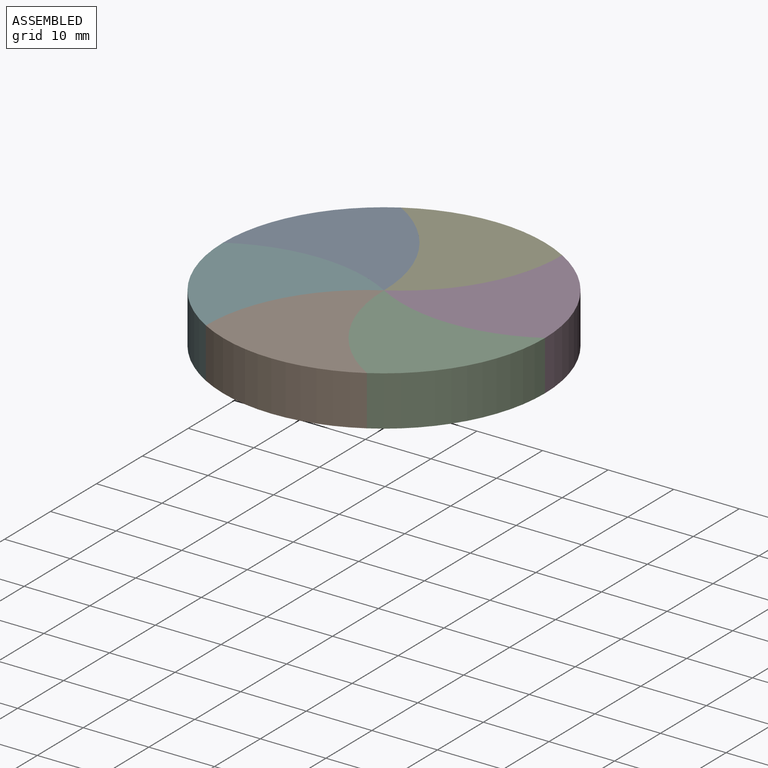
[diagram: assembled view]
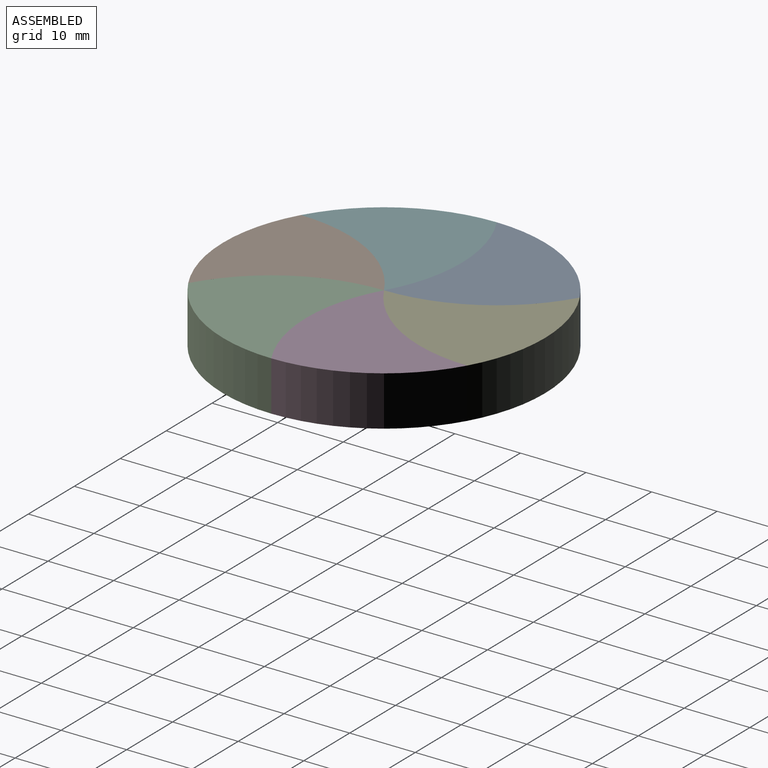
[diagram: assembled view, second angle]
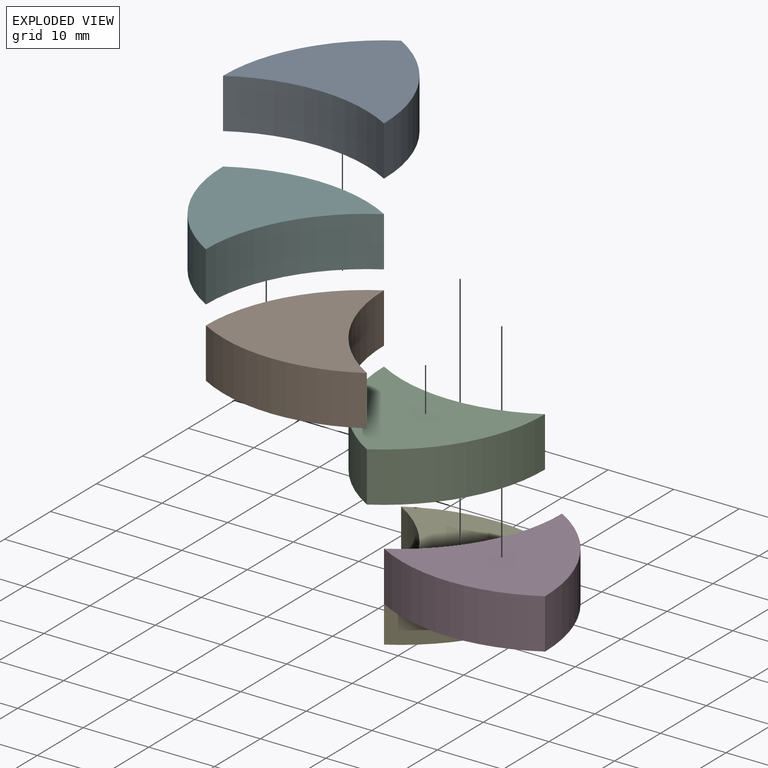
[diagram: exploded view]
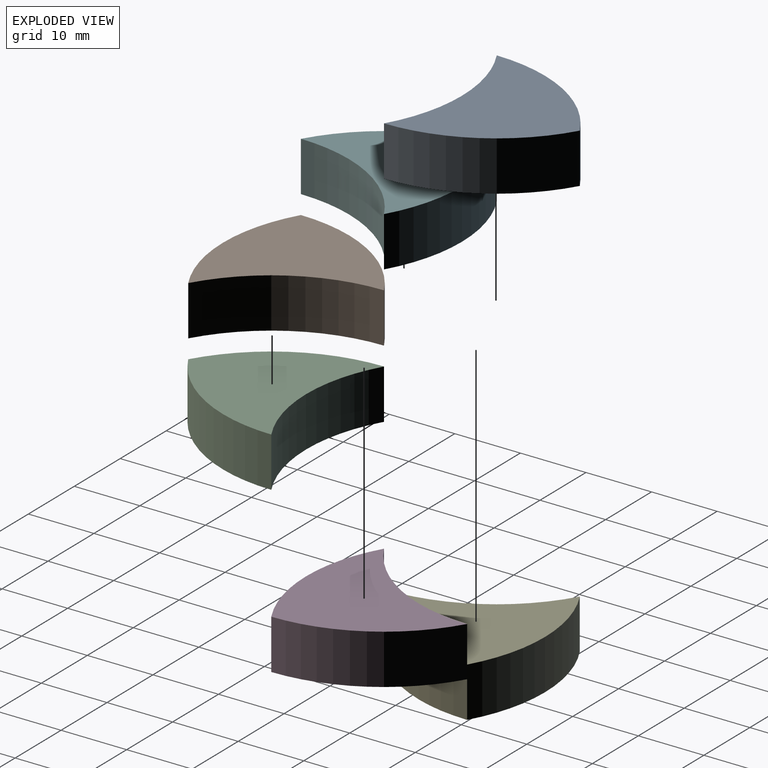
[diagram: exploded view, second angle]
ASSEMBLY  parts=6 mates=5
PART A: 5 faces, bbox 24.5x21.3x7.6 mm
  f0: cylinder r=24.55mm len=24.55mm, axis (0,0,-1), area 195.9mm2, adj f1,f2,f3,f4
  f1: cylinder r=24.55mm len=21.26mm, axis (0,0,-1), area 195.9mm2, adj f0,f2,f3,f4
  f2: cylinder r=24.55mm len=21.26mm, axis (0,0,-1), area 195.9mm2, adj f0,f1,f3,f4
  f3: plane 24.55x21.26mm, normal (0,0,1), area 315.5mm2, adj f0,f1,f2
  f4: plane 24.55x21.26mm, normal (0,0,-1), area 315.5mm2, adj f0,f1,f2
PART B: same geometry as A
PART C: same geometry as A
PART D: same geometry as A
PART E: same geometry as A
PART F: same geometry as A
PLACE A t=(-26.57,-10.18,9.24)mm fixed
PLACE B rot(axis=(-0.87,0.5,0),180deg) t=(-2.02,-10.18,16.86)mm
PLACE C rot(axis=(-1,0,0),180deg) t=(-2.02,-10.18,16.86)mm
PLACE D rot(axis=(-0.87,-0.5,0),180deg) t=(-2.02,-10.18,16.86)mm
PLACE E rot(axis=(0,0,-1),60deg) t=(-14.29,11.08,9.24)mm
PLACE F rot(axis=(0.5,-0.87,0),180deg) t=(-2.02,-10.18,16.86)mm
MATE revolute E.f2 <-> A.f2  axis (0,0,1) through (-2.02,-10.18,16.86)mm
MATE revolute B.f1 <-> C.f1  axis (0,0,1) through (-2.02,-10.18,16.86)mm
MATE revolute F.f1 <-> B.f1  axis (0,0,1) through (-2.02,-10.18,16.86)mm
MATE revolute C.f1 <-> D.f1  axis (0,0,1) through (-2.02,-10.18,16.86)mm
MATE revolute D.f1 <-> E.f2  axis (0,0,1) through (-2.02,-10.18,16.86)mm
